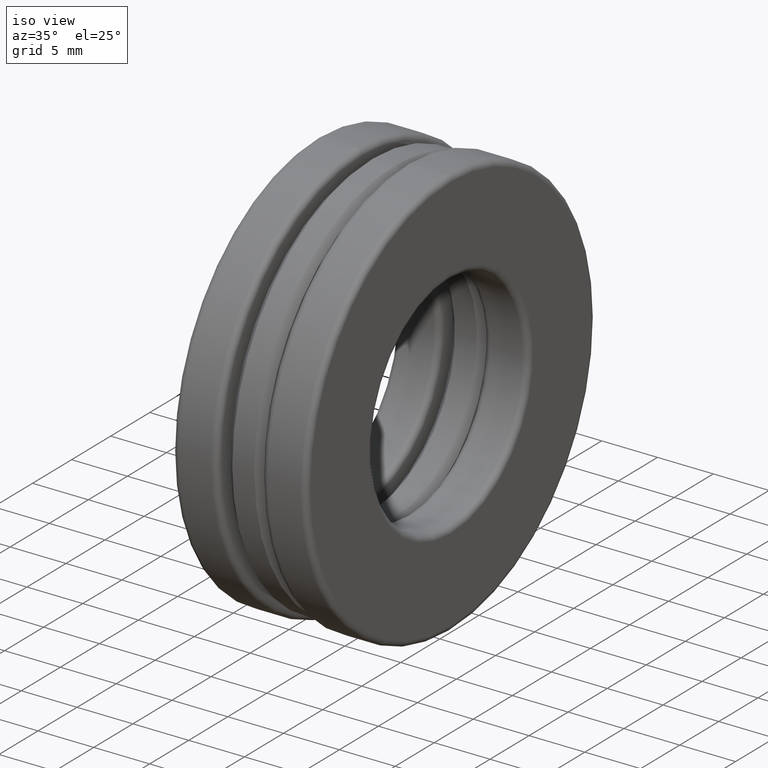
[diagram: clean part render]
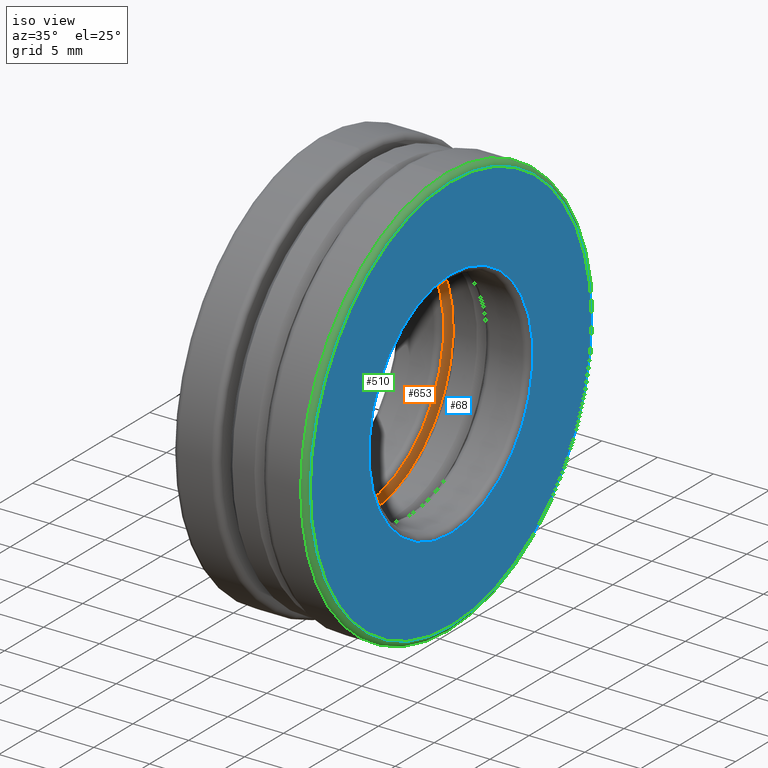
[diagram: same view with three faces highlighted in distinct colors, each labeled with its STEP entity id]
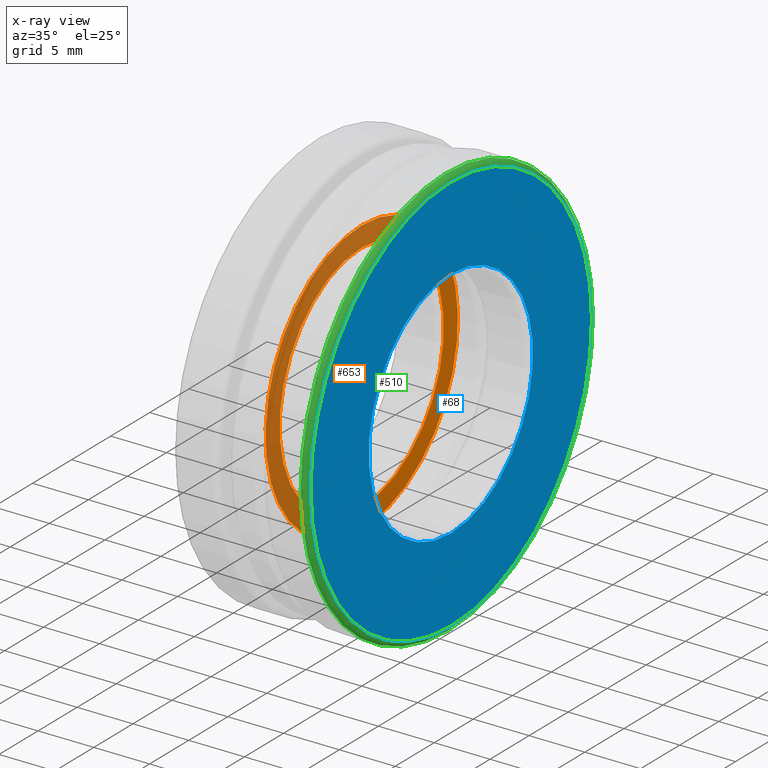
[diagram: x-ray of the same camera — body ghosted, the three highlighted faces saturated]
A machine part, iso view with three faces highlighted in distinct colors.
The next image is the same camera in x-ray (body ghosted, the three faces saturated) — at least one of them is partly hidden behind the body in this view.
Their STEP definitions:

[orange] entity #653 — the highlighted planar face has unit normal (1, 0, 0).
#35 = VERTEX_POINT ( 'NONE', #453 ) ;
#40 = DIRECTION ( 'NONE',  ( -1.000000000000000000, -0.0000000000000000000, -0.0000000000000000000 ) ) ;
#42 = DIRECTION ( 'NONE',  ( 0.0000000000000000000, 0.0000000000000000000, 1.000000000000000000 ) ) ;
#124 = PLANE ( 'NONE',  #465 ) ;
#135 = AXIS2_PLACEMENT_3D ( 'NONE', #718, #258, #645 ) ;
#182 = DIRECTION ( 'NONE',  ( 0.0000000000000000000, 0.0000000000000000000, -1.000000000000000000 ) ) ;
#210 = EDGE_CURVE ( 'NONE', #35, #35, #595, .T. ) ;
#258 = DIRECTION ( 'NONE',  ( -1.000000000000000000, -0.0000000000000000000, -0.0000000000000000000 ) ) ;
#317 = CIRCLE ( 'NONE', #442, 0.4848320407566120100 ) ;
#377 = EDGE_CURVE ( 'NONE', #519, #519, #317, .T. ) ;
#442 = AXIS2_PLACEMENT_3D ( 'NONE', #675, #40, #42 ) ;
#453 = CARTESIAN_POINT ( 'NONE',  ( -0.07866823999999993100, 0.0000000000000000000, 0.4134999999999999800 ) ) ;
#465 = AXIS2_PLACEMENT_3D ( 'NONE', #568, #694, #182 ) ;
#485 = ORIENTED_EDGE ( 'NONE', *, *, #377, .F. ) ;
#519 = VERTEX_POINT ( 'NONE', #652 ) ;
#568 = CARTESIAN_POINT ( 'NONE',  ( -0.07866823999999994500, -4.097853945936188200E-017, 0.0000000000000000000 ) ) ;
#595 = CIRCLE ( 'NONE', #135, 0.4134999999999999800 ) ;
#636 = EDGE_LOOP ( 'NONE', ( #648 ) ) ;
#645 = DIRECTION ( 'NONE',  ( 0.0000000000000000000, 0.0000000000000000000, 1.000000000000000000 ) ) ;
#648 = ORIENTED_EDGE ( 'NONE', *, *, #210, .T. ) ;
#652 = CARTESIAN_POINT ( 'NONE',  ( -0.07866823999999995900, 0.0000000000000000000, 0.4848320407566120100 ) ) ;
#653 = ADVANCED_FACE ( 'NONE', ( #689, #738 ), #124, .T. ) ;
#675 = CARTESIAN_POINT ( 'NONE',  ( -0.07866823999999995900, 0.0000000000000000000, 0.0000000000000000000 ) ) ;
#689 = FACE_BOUND ( 'NONE', #636, .T. ) ;
#694 = DIRECTION ( 'NONE',  ( 1.000000000000000000, 0.0000000000000000000, 0.0000000000000000000 ) ) ;
#718 = CARTESIAN_POINT ( 'NONE',  ( -0.07866823999999993100, 0.0000000000000000000, 0.0000000000000000000 ) ) ;
#738 = FACE_OUTER_BOUND ( 'NONE', #758, .T. ) ;
#758 = EDGE_LOOP ( 'NONE', ( #485 ) ) ;

[blue] entity #68 — the highlighted planar face has unit normal (1, 0, 0).
#14 = EDGE_CURVE ( 'NONE', #212, #212, #87, .T. ) ;
#34 = DIRECTION ( 'NONE',  ( 0.0000000000000000000, 0.0000000000000000000, 1.000000000000000000 ) ) ;
#58 = CARTESIAN_POINT ( 'NONE',  ( 0.2360000000000001000, 0.0000000000000000000, 0.0000000000000000000 ) ) ;
#68 = ADVANCED_FACE ( 'NONE', ( #624, #740 ), #815, .T. ) ;
#87 = CIRCLE ( 'NONE', #404, 0.4135000000000000900 ) ;
#115 = CARTESIAN_POINT ( 'NONE',  ( 0.2360000000000000200, 1.092739197465706300E-016, 0.0000000000000000000 ) ) ;
#179 = DIRECTION ( 'NONE',  ( -1.000000000000000000, -0.0000000000000000000, -0.0000000000000000000 ) ) ;
#204 = CARTESIAN_POINT ( 'NONE',  ( 0.2360000000000001000, 0.0000000000000000000, 0.4135000000000000900 ) ) ;
#212 = VERTEX_POINT ( 'NONE', #204 ) ;
#223 = CARTESIAN_POINT ( 'NONE',  ( 0.2359999999999999600, 0.0000000000000000000, 0.0000000000000000000 ) ) ;
#285 = VERTEX_POINT ( 'NONE', #724 ) ;
#316 = DIRECTION ( 'NONE',  ( 0.0000000000000000000, 0.0000000000000000000, -1.000000000000000000 ) ) ;
#360 = EDGE_CURVE ( 'NONE', #285, #285, #819, .T. ) ;
#404 = AXIS2_PLACEMENT_3D ( 'NONE', #58, #179, #630 ) ;
#415 = ORIENTED_EDGE ( 'NONE', *, *, #14, .T. ) ;
#428 = AXIS2_PLACEMENT_3D ( 'NONE', #223, #744, #34 ) ;
#483 = AXIS2_PLACEMENT_3D ( 'NONE', #115, #556, #316 ) ;
#556 = DIRECTION ( 'NONE',  ( 1.000000000000000000, 0.0000000000000000000, 0.0000000000000000000 ) ) ;
#561 = EDGE_LOOP ( 'NONE', ( #415 ) ) ;
#601 = EDGE_LOOP ( 'NONE', ( #679 ) ) ;
#624 = FACE_BOUND ( 'NONE', #561, .T. ) ;
#630 = DIRECTION ( 'NONE',  ( 0.0000000000000000000, 0.0000000000000000000, 1.000000000000000000 ) ) ;
#679 = ORIENTED_EDGE ( 'NONE', *, *, #360, .F. ) ;
#724 = CARTESIAN_POINT ( 'NONE',  ( 0.2359999999999999600, 0.0000000000000000000, 0.7085000000000002400 ) ) ;
#740 = FACE_OUTER_BOUND ( 'NONE', #601, .T. ) ;
#744 = DIRECTION ( 'NONE',  ( -1.000000000000000000, -0.0000000000000000000, -0.0000000000000000000 ) ) ;
#815 = PLANE ( 'NONE',  #483 ) ;
#819 = CIRCLE ( 'NONE', #428, 0.7085000000000002400 ) ;

[green] entity #510 — the highlighted toroidal blend (fillet) surface has major radius 17.9959 mm and minor (blend) radius 0.508 mm.
#31 = DIRECTION ( 'NONE',  ( 0.0000000000000000000, 0.0000000000000000000, 1.000000000000000000 ) ) ;
#34 = DIRECTION ( 'NONE',  ( 0.0000000000000000000, 0.0000000000000000000, 1.000000000000000000 ) ) ;
#82 = CARTESIAN_POINT ( 'NONE',  ( 0.2160000000000003300, 0.0000000000000000000, 0.7285000000000001500 ) ) ;
#148 = CARTESIAN_POINT ( 'NONE',  ( 0.2160000000000003300, 0.0000000000000000000, 0.0000000000000000000 ) ) ;
#162 = CIRCLE ( 'NONE', #810, 0.7285000000000001500 ) ;
#202 = TOROIDAL_SURFACE ( 'NONE', #527, 0.7085000000000002400, 0.01999999999999976800 ) ;
#223 = CARTESIAN_POINT ( 'NONE',  ( 0.2359999999999999600, 0.0000000000000000000, 0.0000000000000000000 ) ) ;
#277 = EDGE_CURVE ( 'NONE', #604, #604, #162, .T. ) ;
#284 = CARTESIAN_POINT ( 'NONE',  ( 0.2160000000000003300, 0.0000000000000000000, 0.0000000000000000000 ) ) ;
#285 = VERTEX_POINT ( 'NONE', #724 ) ;
#360 = EDGE_CURVE ( 'NONE', #285, #285, #819, .T. ) ;
#412 = FACE_OUTER_BOUND ( 'NONE', #419, .T. ) ;
#419 = EDGE_LOOP ( 'NONE', ( #513 ) ) ;
#422 = DIRECTION ( 'NONE',  ( -1.000000000000000000, -0.0000000000000000000, -0.0000000000000000000 ) ) ;
#428 = AXIS2_PLACEMENT_3D ( 'NONE', #223, #744, #34 ) ;
#510 = ADVANCED_FACE ( 'NONE', ( #594, #412 ), #202, .T. ) ;
#513 = ORIENTED_EDGE ( 'NONE', *, *, #360, .T. ) ;
#527 = AXIS2_PLACEMENT_3D ( 'NONE', #284, #422, #757 ) ;
#594 = FACE_OUTER_BOUND ( 'NONE', #662, .T. ) ;
#604 = VERTEX_POINT ( 'NONE', #82 ) ;
#662 = EDGE_LOOP ( 'NONE', ( #687 ) ) ;
#667 = DIRECTION ( 'NONE',  ( -1.000000000000000000, -0.0000000000000000000, -0.0000000000000000000 ) ) ;
#687 = ORIENTED_EDGE ( 'NONE', *, *, #277, .F. ) ;
#724 = CARTESIAN_POINT ( 'NONE',  ( 0.2359999999999999600, 0.0000000000000000000, 0.7085000000000002400 ) ) ;
#744 = DIRECTION ( 'NONE',  ( -1.000000000000000000, -0.0000000000000000000, -0.0000000000000000000 ) ) ;
#757 = DIRECTION ( 'NONE',  ( 0.0000000000000000000, 0.0000000000000000000, 1.000000000000000000 ) ) ;
#810 = AXIS2_PLACEMENT_3D ( 'NONE', #148, #667, #31 ) ;
#819 = CIRCLE ( 'NONE', #428, 0.7085000000000002400 ) ;